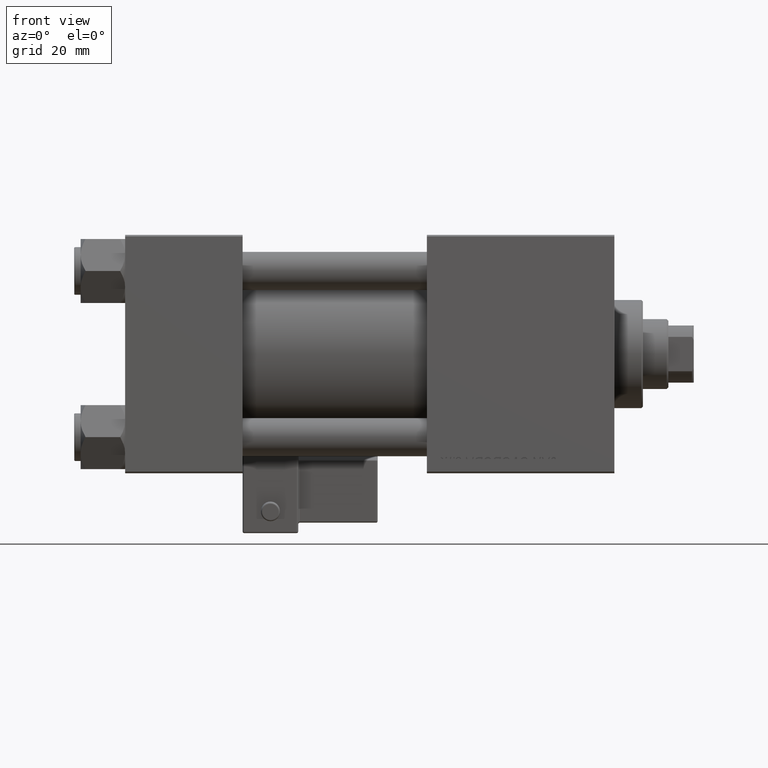
[diagram: clean part render]
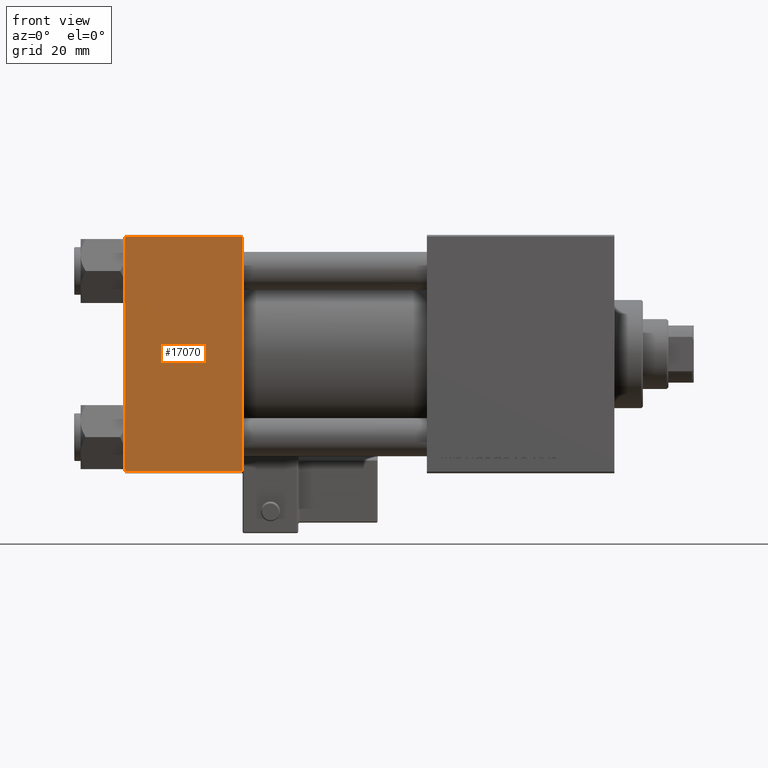
[diagram: same view with one face highlighted and labeled with its STEP entity id]
A machine part, front view. The second image highlights one B-rep face of the part: STEP entity #17070.
In plain terms, the highlighted planar face has unit normal (0, 1, 0).
Its self-contained STEP definition (entity closure, byte-faithful):
#6385 = VECTOR ( 'NONE', #48268, 1000.000000000000000 ) ;
#7061 = ORIENTED_EDGE ( 'NONE', *, *, #30380, .T. ) ;
#7344 = EDGE_CURVE ( 'NONE', #9269, #11853, #23646, .T. ) ;
#7600 = CARTESIAN_POINT ( 'NONE',  ( 37.00000000000000000, -37.50000000000000000, -37.00000000000003553 ) ) ;
#9269 = VERTEX_POINT ( 'NONE', #13768 ) ;
#9398 = DIRECTION ( 'NONE',  ( -1.000000000000000000, 0.000000000000000000, 0.000000000000000000 ) ) ;
#11853 = VERTEX_POINT ( 'NONE', #7600 ) ;
#13768 = CARTESIAN_POINT ( 'NONE',  ( 37.00000000000000000, -37.50000000000000711, 36.99999999999999289 ) ) ;
#16362 = EDGE_LOOP ( 'NONE', ( #41569, #7061, #28632, #50547 ) ) ;
#17070 = ADVANCED_FACE ( 'NONE', ( #43295 ), #46753, .F. ) ;
#17247 = CARTESIAN_POINT ( 'NONE',  ( 0.000000000000000000, -37.50000000000000000, -37.00000000000003553 ) ) ;
#21068 = VECTOR ( 'NONE', #9398, 1000.000000000000000 ) ;
#21094 = LINE ( 'NONE', #41215, #51683 ) ;
#23007 = DIRECTION ( 'NONE',  ( 0.000000000000000000, 9.251858538542971581E-17, -1.000000000000000000 ) ) ;
#23390 = AXIS2_PLACEMENT_3D ( 'NONE', #31115, #34578, #30859 ) ;
#23447 = EDGE_CURVE ( 'NONE', #9269, #26851, #49663, .T. ) ;
#23646 = LINE ( 'NONE', #48016, #6385 ) ;
#26851 = VERTEX_POINT ( 'NONE', #27689 ) ;
#26982 = LINE ( 'NONE', #40213, #49859 ) ;
#27599 = EDGE_CURVE ( 'NONE', #26851, #33512, #26982, .T. ) ;
#27689 = CARTESIAN_POINT ( 'NONE',  ( 0.000000000000000000, -37.50000000000000711, 36.99999999999999289 ) ) ;
#28632 = ORIENTED_EDGE ( 'NONE', *, *, #7344, .F. ) ;
#29538 = DIRECTION ( 'NONE',  ( 1.000000000000000000, 0.000000000000000000, 0.000000000000000000 ) ) ;
#30380 = EDGE_CURVE ( 'NONE', #33512, #11853, #21094, .T. ) ;
#30859 = DIRECTION ( 'NONE',  ( 0.000000000000000000, -9.251858538542971581E-17, 1.000000000000000000 ) ) ;
#31115 = CARTESIAN_POINT ( 'NONE',  ( 37.00000000000000000, -37.50000000000000711, 37.49999999999999289 ) ) ;
#33512 = VERTEX_POINT ( 'NONE', #17247 ) ;
#34578 = DIRECTION ( 'NONE',  ( -0.000000000000000000, 1.000000000000000000, 9.251858538542971581E-17 ) ) ;
#40213 = CARTESIAN_POINT ( 'NONE',  ( 0.000000000000000000, -37.50000000000000711, 37.49999999999999289 ) ) ;
#41215 = CARTESIAN_POINT ( 'NONE',  ( 37.00000000000000000, -37.50000000000000000, -37.00000000000003553 ) ) ;
#41569 = ORIENTED_EDGE ( 'NONE', *, *, #27599, .T. ) ;
#43295 = FACE_OUTER_BOUND ( 'NONE', #16362, .T. ) ;
#45691 = CARTESIAN_POINT ( 'NONE',  ( 37.00000000000000000, -37.50000000000000711, 36.99999999999999289 ) ) ;
#46753 = PLANE ( 'NONE',  #23390 ) ;
#48016 = CARTESIAN_POINT ( 'NONE',  ( 37.00000000000000000, -37.50000000000000711, 37.49999999999999289 ) ) ;
#48268 = DIRECTION ( 'NONE',  ( 0.000000000000000000, 9.251858538542971581E-17, -1.000000000000000000 ) ) ;
#49663 = LINE ( 'NONE', #45691, #21068 ) ;
#49859 = VECTOR ( 'NONE', #23007, 1000.000000000000000 ) ;
#50547 = ORIENTED_EDGE ( 'NONE', *, *, #23447, .T. ) ;
#51683 = VECTOR ( 'NONE', #29538, 1000.000000000000000 ) ;